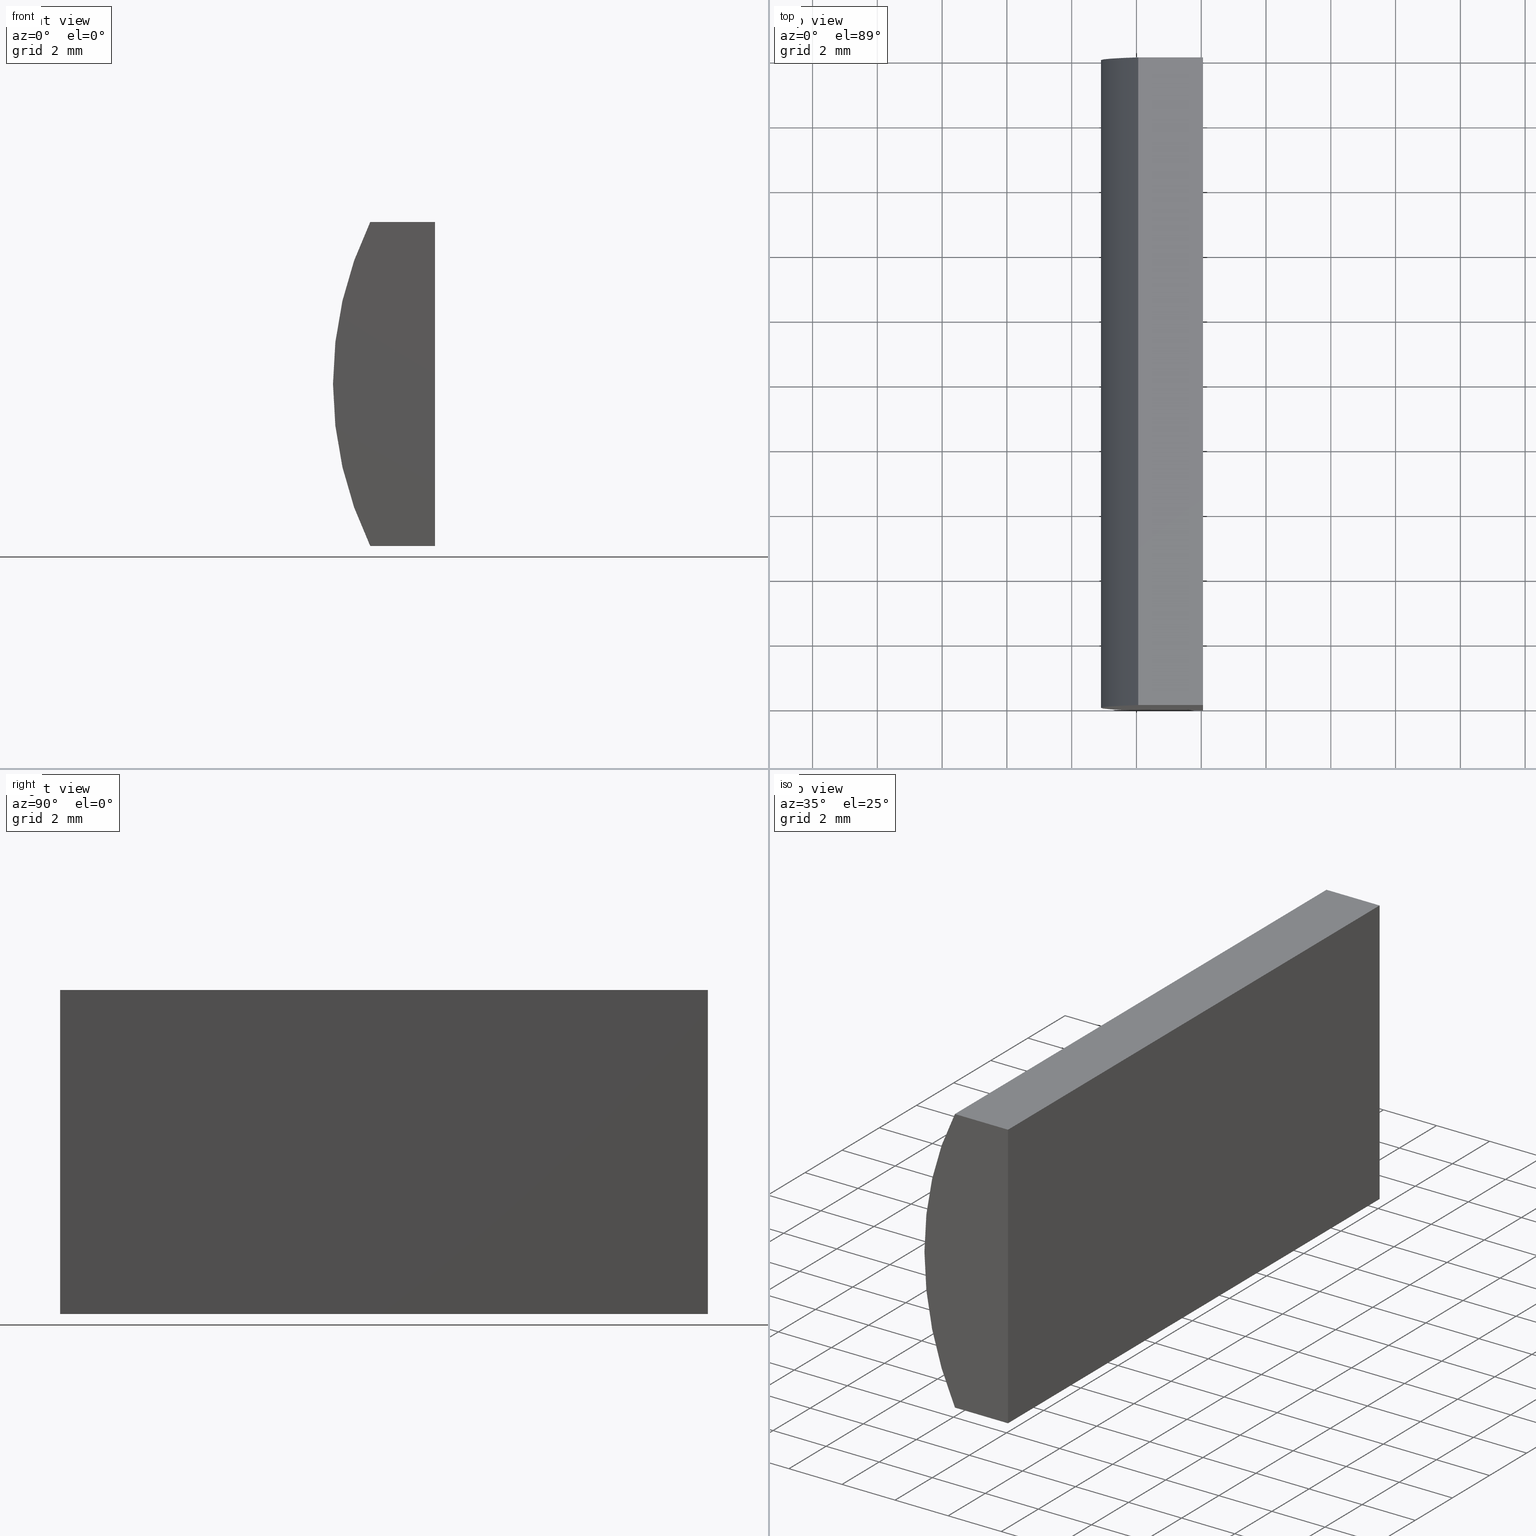
[diagram: canonical four-view strip — front | top / right | iso, engineering-drawing reading convention]
A machine part, canonical four-view strip (front | top / right | iso — engineering-drawing reading convention). The complete STEP part file that produces these views, byte-faithful:
ISO-10303-21;
HEADER;
FILE_DESCRIPTION (( 'STEP AP214' ),
    '1' );
FILE_NAME ('155281.STEP',
    '2019-06-26T01:50:11',
    ( 'user' ),
    ( '΢���й�' ),
    'SwSTEP 2.0',
    'SolidWorks 2016',
    '' );
FILE_SCHEMA (( 'AUTOMOTIVE_DESIGN' ));
ENDSEC;

DATA;
#1 = DIRECTION ( 'NONE',  ( 0.0000000000000000000, 0.0000000000000000000, -1.000000000000000000 ) ) ;
#2 = LINE ( 'NONE', #203, #44 ) ;
#3 =( GEOMETRIC_REPRESENTATION_CONTEXT ( 3 ) GLOBAL_UNCERTAINTY_ASSIGNED_CONTEXT ( ( #74 ) ) GLOBAL_UNIT_ASSIGNED_CONTEXT ( ( #107, #101, #195 ) ) REPRESENTATION_CONTEXT ( 'NONE', 'WORKASPACE' ) );
#4 = ADVANCED_FACE ( 'NONE', ( #135 ), #16, .F. ) ;
#5 = CIRCLE ( 'NONE', #42, 11.45000000000000100 ) ;
#6 = STYLED_ITEM ( 'NONE', ( #120 ), #124 ) ;
#7 = UNCERTAINTY_MEASURE_WITH_UNIT (LENGTH_MEASURE( 1.000000000000000100E-005 ), #45, 'distance_accuracy_value', 'NONE');
#8 = DIRECTION ( 'NONE',  ( 1.000000000000000000, 0.0000000000000000000, -0.0000000000000000000 ) ) ;
#9 = LINE ( 'NONE', #197, #173 ) ;
#10 = CARTESIAN_POINT ( 'NONE',  ( -5.945402443392432600, 20.00000000000000000, -5.000000000000000000 ) ) ;
#11 =( GEOMETRIC_REPRESENTATION_CONTEXT ( 3 ) GLOBAL_UNCERTAINTY_ASSIGNED_CONTEXT ( ( #131 ) ) GLOBAL_UNIT_ASSIGNED_CONTEXT ( ( #59, #93, #62 ) ) REPRESENTATION_CONTEXT ( 'NONE', 'WORKASPACE' ) );
#12 = EDGE_LOOP ( 'NONE', ( #21, #187, #122, #128 ) ) ;
#13 = VECTOR ( 'NONE', #142, 1000.000000000000000 ) ;
#14 = CARTESIAN_POINT ( 'NONE',  ( -5.945402443392432600, 0.0000000000000000000, -5.000000000000000000 ) ) ;
#15 = ORIENTED_EDGE ( 'NONE', *, *, #68, .T. ) ;
#16 = PLANE ( 'NONE',  #196 ) ;
#17 = ADVANCED_FACE ( 'NONE', ( #19 ), #127, .T. ) ;
#18 = CARTESIAN_POINT ( 'NONE',  ( -5.945402443392432600, 0.0000000000000000000, 5.000000000000000000 ) ) ;
#19 = FACE_OUTER_BOUND ( 'NONE', #12, .T. ) ;
#20 = CARTESIAN_POINT ( 'NONE',  ( -3.944795665148738400, 20.00000000000000000, -5.000000000000000000 ) ) ;
#21 = ORIENTED_EDGE ( 'NONE', *, *, #132, .T. ) ;
#22 = PRODUCT_DEFINITION_SHAPE ( 'NONE', 'NONE',  #147 ) ;
#23 = SURFACE_SIDE_STYLE ('',( #52 ) ) ;
#24 = ADVANCED_FACE ( 'NONE', ( #48 ), #160, .F. ) ;
#25 = VERTEX_POINT ( 'NONE', #30 ) ;
#26 = DIRECTION ( 'NONE',  ( -1.000000000000000000, 0.0000000000000000000, 3.469446951953614200E-016 ) ) ;
#27 = DIRECTION ( 'NONE',  ( -1.000000000000000000, 0.0000000000000000000, -0.0000000000000000000 ) ) ;
#28 = PLANE ( 'NONE',  #97 ) ;
#29 = EDGE_CURVE ( 'NONE', #145, #136, #86, .T. ) ;
#30 = CARTESIAN_POINT ( 'NONE',  ( -3.944795665148738400, 0.0000000000000000000, -5.000000000000000000 ) ) ;
#31 = PRESENTATION_LAYER_ASSIGNMENT (  '', '', ( #102 ) ) ;
#32 = DIRECTION ( 'NONE',  ( 0.0000000000000000000, -0.0000000000000000000, 1.000000000000000000 ) ) ;
#33 = ORIENTED_EDGE ( 'NONE', *, *, #66, .T. ) ;
#34 = EDGE_CURVE ( 'NONE', #117, #145, #9, .T. ) ;
#35 = ORIENTED_EDGE ( 'NONE', *, *, #34, .T. ) ;
#36 = ORIENTED_EDGE ( 'NONE', *, *, #132, .F. ) ;
#37 = EDGE_LOOP ( 'NONE', ( #81, #165, #91, #99 ) ) ;
#38 = PRESENTATION_LAYER_ASSIGNMENT (  '', '', ( #6 ) ) ;
#39 = ADVANCED_FACE ( 'NONE', ( #178 ), #28, .T. ) ;
#40 = DIRECTION ( 'NONE',  ( 0.0000000000000000000, 1.000000000000000000, 0.0000000000000000000 ) ) ;
#41 = SURFACE_STYLE_FILL_AREA ( #125 ) ;
#42 = AXIS2_PLACEMENT_3D ( 'NONE', #73, #40, #116 ) ;
#43 = CARTESIAN_POINT ( 'NONE',  ( -5.945402443392432600, 20.00000000000000000, 5.000000000000000000 ) ) ;
#44 = VECTOR ( 'NONE', #167, 1000.000000000000000 ) ;
#45 =( LENGTH_UNIT ( ) NAMED_UNIT ( * ) SI_UNIT ( .MILLI., .METRE. ) );
#46 = CARTESIAN_POINT ( 'NONE',  ( 4.355204334851265500, 20.00000000000000000, 4.286263797015675000E-017 ) ) ;
#47 = CARTESIAN_POINT ( 'NONE',  ( -5.945402443392432600, 0.0000000000000000000, 5.000000000000000000 ) ) ;
#48 = FACE_OUTER_BOUND ( 'NONE', #51, .T. ) ;
#49 = EDGE_LOOP ( 'NONE', ( #103, #35, #201, #33 ) ) ;
#50 = EDGE_CURVE ( 'NONE', #136, #25, #83, .T. ) ;
#51 = EDGE_LOOP ( 'NONE', ( #129, #154, #55, #64 ) ) ;
#52 = SURFACE_STYLE_FILL_AREA ( #137 ) ;
#53 = DIRECTION ( 'NONE',  ( 0.0000000000000000000, 1.000000000000000000, 0.0000000000000000000 ) ) ;
#54 = AXIS2_PLACEMENT_3D ( 'NONE', #10, #150, #8 ) ;
#55 = ORIENTED_EDGE ( 'NONE', *, *, #34, .F. ) ;
#56 = APPLICATION_PROTOCOL_DEFINITION ( 'draft international standard', 'automotive_design', 1998, #157 ) ;
#57 = DIRECTION ( 'NONE',  ( 0.0000000000000000000, 0.0000000000000000000, -1.000000000000000000 ) ) ;
#58 = ORIENTED_EDGE ( 'NONE', *, *, #50, .F. ) ;
#59 =( LENGTH_UNIT ( ) NAMED_UNIT ( * ) SI_UNIT ( .MILLI., .METRE. ) );
#60 = EDGE_CURVE ( 'NONE', #145, #70, #170, .T. ) ;
#61 = COLOUR_RGB ( '',1.000000000000000000, 1.000000000000000000, 1.000000000000000000 ) ;
#62 =( NAMED_UNIT ( * ) SI_UNIT ( $, .STERADIAN. ) SOLID_ANGLE_UNIT ( ) );
#63 = DIRECTION ( 'NONE',  ( 1.000000000000000000, 0.0000000000000000000, 0.0000000000000000000 ) ) ;
#64 = ORIENTED_EDGE ( 'NONE', *, *, #75, .T. ) ;
#65 = LINE ( 'NONE', #14, #114 ) ;
#66 = EDGE_CURVE ( 'NONE', #70, #146, #105, .T. ) ;
#67 = DIRECTION ( 'NONE',  ( 0.0000000000000000000, 0.0000000000000000000, 1.000000000000000000 ) ) ;
#68 = EDGE_CURVE ( 'NONE', #70, #25, #172, .T. ) ;
#69 =( NAMED_UNIT ( * ) PLANE_ANGLE_UNIT ( ) SI_UNIT ( $, .RADIAN. ) );
#70 = VERTEX_POINT ( 'NONE', #20 ) ;
#71 = MECHANICAL_DESIGN_GEOMETRIC_PRESENTATION_REPRESENTATION (  '', ( #102 ), #3 ) ;
#72 = CARTESIAN_POINT ( 'NONE',  ( -5.945402443392432600, 20.00000000000000000, -5.000000000000000000 ) ) ;
#73 = CARTESIAN_POINT ( 'NONE',  ( 4.355204334851265500, 20.00000000000000000, 4.286263797015675000E-017 ) ) ;
#74 = UNCERTAINTY_MEASURE_WITH_UNIT (LENGTH_MEASURE( 1.000000000000000100E-005 ), #107, 'distance_accuracy_value', 'NONE');
#75 = EDGE_CURVE ( 'NONE', #117, #141, #169, .T. ) ;
#76 = CARTESIAN_POINT ( 'NONE',  ( -5.945402443392432600, 20.00000000000000000, -5.000000000000000000 ) ) ;
#77 = ORIENTED_EDGE ( 'NONE', *, *, #188, .T. ) ;
#78 = SURFACE_STYLE_USAGE ( .BOTH. , #94 ) ;
#79 = VECTOR ( 'NONE', #104, 1000.000000000000000 ) ;
#80 = VERTEX_POINT ( 'NONE', #148 ) ;
#81 = ORIENTED_EDGE ( 'NONE', *, *, #50, .T. ) ;
#82 = CARTESIAN_POINT ( 'NONE',  ( -3.944795665148738400, 0.0000000000000000000, -5.000000000000000000 ) ) ;
#83 = LINE ( 'NONE', #82, #182 ) ;
#84 = DIRECTION ( 'NONE',  ( 0.0000000000000000000, -0.0000000000000000000, 1.000000000000000000 ) ) ;
#85 = VECTOR ( 'NONE', #130, 1000.000000000000000 ) ;
#86 = LINE ( 'NONE', #151, #13 ) ;
#87 = EDGE_LOOP ( 'NONE', ( #36, #152, #58, #158 ) ) ;
#88 = CARTESIAN_POINT ( 'NONE',  ( 4.355204334851265500, 0.0000000000000000000, 4.286263797015675000E-017 ) ) ;
#89 = DIRECTION ( 'NONE',  ( 3.469446951953614200E-016, 0.0000000000000000000, 1.000000000000000000 ) ) ;
#90 = AXIS2_PLACEMENT_3D ( 'NONE', #121, #126, #57 ) ;
#91 = ORIENTED_EDGE ( 'NONE', *, *, #60, .F. ) ;
#92 = COLOUR_RGB ( '',1.000000000000000000, 1.000000000000000000, 1.000000000000000000 ) ;
#93 =( NAMED_UNIT ( * ) PLANE_ANGLE_UNIT ( ) SI_UNIT ( $, .RADIAN. ) );
#94 = SURFACE_SIDE_STYLE ('',( #41 ) ) ;
#95 = CARTESIAN_POINT ( 'NONE',  ( 0.0000000000000000000, 0.0000000000000000000, 0.0000000000000000000 ) ) ;
#96 = CARTESIAN_POINT ( 'NONE',  ( -3.944795665148738400, 20.00000000000000000, -5.000000000000000000 ) ) ;
#97 = AXIS2_PLACEMENT_3D ( 'NONE', #46, #53, #32 ) ;
#98 = ADVANCED_FACE ( 'NONE', ( #138 ), #164, .F. ) ;
#99 = ORIENTED_EDGE ( 'NONE', *, *, #29, .T. ) ;
#100 = FILL_AREA_STYLE_COLOUR ( '', #92 ) ;
#101 =( NAMED_UNIT ( * ) PLANE_ANGLE_UNIT ( ) SI_UNIT ( $, .RADIAN. ) );
#102 = STYLED_ITEM ( 'NONE', ( #175 ), #184 ) ;
#103 = ORIENTED_EDGE ( 'NONE', *, *, #166, .T. ) ;
#104 = DIRECTION ( 'NONE',  ( -0.0000000000000000000, -1.000000000000000000, -0.0000000000000000000 ) ) ;
#105 = LINE ( 'NONE', #76, #204 ) ;
#106 = CARTESIAN_POINT ( 'NONE',  ( -5.945402443392432600, 20.00000000000000000, 5.000000000000000000 ) ) ;
#107 =( LENGTH_UNIT ( ) NAMED_UNIT ( * ) SI_UNIT ( .MILLI., .METRE. ) );
#108 = EDGE_CURVE ( 'NONE', #146, #80, #2, .T. ) ;
#109 = DIRECTION ( 'NONE',  ( -1.000000000000000000, -0.0000000000000000000, -0.0000000000000000000 ) ) ;
#110 = CARTESIAN_POINT ( 'NONE',  ( -3.944795665148738400, 20.00000000000000000, -5.000000000000000000 ) ) ;
#111 = PRODUCT_DEFINITION_FORMATION_WITH_SPECIFIED_SOURCE ( '�κ�', '', #186, .NOT_KNOWN. ) ;
#112 = CARTESIAN_POINT ( 'NONE',  ( -3.944795665148738400, 20.00000000000000000, -5.000000000000000000 ) ) ;
#113 = CARTESIAN_POINT ( 'NONE',  ( -3.944795665148734800, 0.0000000000000000000, 5.000000000000000000 ) ) ;
#114 = VECTOR ( 'NONE', #109, 1000.000000000000000 ) ;
#115 = SURFACE_STYLE_USAGE ( .BOTH. , #23 ) ;
#116 = DIRECTION ( 'NONE',  ( 0.0000000000000000000, 0.0000000000000000000, 1.000000000000000000 ) ) ;
#117 = VERTEX_POINT ( 'NONE', #43 ) ;
#118 = CARTESIAN_POINT ( 'NONE',  ( 4.355204334851265500, 0.0000000000000000000, 4.286263797015675000E-017 ) ) ;
#119 = VECTOR ( 'NONE', #163, 1000.000000000000000 ) ;
#120 = PRESENTATION_STYLE_ASSIGNMENT (( #78 ) ) ;
#121 = CARTESIAN_POINT ( 'NONE',  ( 4.355204334851265500, 20.00000000000000000, 4.286263797015675000E-017 ) ) ;
#122 = ORIENTED_EDGE ( 'NONE', *, *, #166, .F. ) ;
#123 = VECTOR ( 'NONE', #202, 1000.000000000000000 ) ;
#124 = MANIFOLD_SOLID_BREP ( '͹̨-����1', #174 ) ;
#125 = FILL_AREA_STYLE ('',( #200 ) ) ;
#126 = DIRECTION ( 'NONE',  ( -0.0000000000000000000, -1.000000000000000000, -0.0000000000000000000 ) ) ;
#127 = CYLINDRICAL_SURFACE ( 'NONE', #90, 11.45000000000000100 ) ;
#128 = ORIENTED_EDGE ( 'NONE', *, *, #108, .T. ) ;
#129 = ORIENTED_EDGE ( 'NONE', *, *, #143, .T. ) ;
#130 = DIRECTION ( 'NONE',  ( -0.0000000000000000000, -1.000000000000000000, -0.0000000000000000000 ) ) ;
#131 = UNCERTAINTY_MEASURE_WITH_UNIT (LENGTH_MEASURE( 1.000000000000000100E-005 ), #59, 'distance_accuracy_value', 'NONE');
#132 = EDGE_CURVE ( 'NONE', #80, #141, #161, .T. ) ;
#133 = ADVANCED_FACE ( 'NONE', ( #180 ), #134, .F. ) ;
#134 = PLANE ( 'NONE',  #149 ) ;
#135 = FACE_OUTER_BOUND ( 'NONE', #37, .T. ) ;
#136 = VERTEX_POINT ( 'NONE', #113 ) ;
#137 = FILL_AREA_STYLE ('',( #100 ) ) ;
#138 = FACE_OUTER_BOUND ( 'NONE', #181, .T. ) ;
#139 = AXIS2_PLACEMENT_3D ( 'NONE', #88, #168, #67 ) ;
#140 = PRODUCT_DEFINITION_CONTEXT ( 'detailed design', #183, 'design' ) ;
#141 = VERTEX_POINT ( 'NONE', #47 ) ;
#142 = DIRECTION ( 'NONE',  ( -0.0000000000000000000, -1.000000000000000000, -0.0000000000000000000 ) ) ;
#143 = EDGE_CURVE ( 'NONE', #141, #136, #156, .T. ) ;
#144 = APPLICATION_PROTOCOL_DEFINITION ( 'draft international standard', 'automotive_design', 1998, #183 ) ;
#145 = VERTEX_POINT ( 'NONE', #199 ) ;
#146 = VERTEX_POINT ( 'NONE', #72 ) ;
#147 = PRODUCT_DEFINITION ( 'δ֪', '', #111, #140 ) ;
#148 = CARTESIAN_POINT ( 'NONE',  ( -5.945402443392432600, 0.0000000000000000000, -5.000000000000000000 ) ) ;
#149 = AXIS2_PLACEMENT_3D ( 'NONE', #118, #191, #84 ) ;
#150 = DIRECTION ( 'NONE',  ( 0.0000000000000000000, 0.0000000000000000000, 1.000000000000000000 ) ) ;
#151 = CARTESIAN_POINT ( 'NONE',  ( -3.944795665148734800, 20.00000000000000000, 5.000000000000000000 ) ) ;
#152 = ORIENTED_EDGE ( 'NONE', *, *, #188, .F. ) ;
#153 = MECHANICAL_DESIGN_GEOMETRIC_PRESENTATION_REPRESENTATION (  '', ( #6 ), #192 ) ;
#154 = ORIENTED_EDGE ( 'NONE', *, *, #29, .F. ) ;
#155 = SHAPE_DEFINITION_REPRESENTATION ( #22, #184 ) ;
#156 = LINE ( 'NONE', #18, #123 ) ;
#157 = APPLICATION_CONTEXT ( 'automotive_design' ) ;
#158 = ORIENTED_EDGE ( 'NONE', *, *, #143, .F. ) ;
#159 = PRODUCT_CONTEXT ( 'NONE', #157, 'mechanical' ) ;
#160 = PLANE ( 'NONE',  #194 ) ;
#161 = CIRCLE ( 'NONE', #139, 11.45000000000000100 ) ;
#162 = DIRECTION ( 'NONE',  ( -3.469446951953614200E-016, -0.0000000000000000000, -1.000000000000000000 ) ) ;
#163 = DIRECTION ( 'NONE',  ( -3.469446951953614200E-016, -0.0000000000000000000, -1.000000000000000000 ) ) ;
#164 = PLANE ( 'NONE',  #54 ) ;
#165 = ORIENTED_EDGE ( 'NONE', *, *, #68, .F. ) ;
#166 = EDGE_CURVE ( 'NONE', #146, #117, #5, .T. ) ;
#167 = DIRECTION ( 'NONE',  ( -0.0000000000000000000, -1.000000000000000000, -0.0000000000000000000 ) ) ;
#168 = DIRECTION ( 'NONE',  ( 0.0000000000000000000, 1.000000000000000000, 0.0000000000000000000 ) ) ;
#169 = LINE ( 'NONE', #193, #79 ) ;
#170 = LINE ( 'NONE', #110, #119 ) ;
#171 = DIRECTION ( 'NONE',  ( 0.0000000000000000000, 0.0000000000000000000, 1.000000000000000000 ) ) ;
#172 = LINE ( 'NONE', #112, #85 ) ;
#173 = VECTOR ( 'NONE', #176, 1000.000000000000000 ) ;
#174 = CLOSED_SHELL ( 'NONE', ( #17, #24, #4, #98, #39, #133 ) ) ;
#175 = PRESENTATION_STYLE_ASSIGNMENT (( #115 ) ) ;
#176 = DIRECTION ( 'NONE',  ( 1.000000000000000000, 0.0000000000000000000, 0.0000000000000000000 ) ) ;
#177 = ORIENTED_EDGE ( 'NONE', *, *, #108, .F. ) ;
#178 = FACE_OUTER_BOUND ( 'NONE', #49, .T. ) ;
#179 = AXIS2_PLACEMENT_3D ( 'NONE', #95, #171, #63 ) ;
#180 = FACE_OUTER_BOUND ( 'NONE', #87, .T. ) ;
#181 = EDGE_LOOP ( 'NONE', ( #77, #177, #189, #15 ) ) ;
#182 = VECTOR ( 'NONE', #162, 1000.000000000000000 ) ;
#183 = APPLICATION_CONTEXT ( 'automotive_design' ) ;
#184 = ADVANCED_BREP_SHAPE_REPRESENTATION ( '155281', ( #124, #179 ), #11 ) ;
#185 =( NAMED_UNIT ( * ) SI_UNIT ( $, .STERADIAN. ) SOLID_ANGLE_UNIT ( ) );
#186 = PRODUCT ( '155281', '155281', '', ( #159 ) ) ;
#187 = ORIENTED_EDGE ( 'NONE', *, *, #75, .F. ) ;
#188 = EDGE_CURVE ( 'NONE', #25, #80, #65, .T. ) ;
#189 = ORIENTED_EDGE ( 'NONE', *, *, #66, .F. ) ;
#190 = DIRECTION ( 'NONE',  ( -1.000000000000000000, -0.0000000000000000000, -0.0000000000000000000 ) ) ;
#191 = DIRECTION ( 'NONE',  ( 0.0000000000000000000, 1.000000000000000000, 0.0000000000000000000 ) ) ;
#192 =( GEOMETRIC_REPRESENTATION_CONTEXT ( 3 ) GLOBAL_UNCERTAINTY_ASSIGNED_CONTEXT ( ( #7 ) ) GLOBAL_UNIT_ASSIGNED_CONTEXT ( ( #45, #69, #185 ) ) REPRESENTATION_CONTEXT ( 'NONE', 'WORKASPACE' ) );
#193 = CARTESIAN_POINT ( 'NONE',  ( -5.945402443392432600, 20.00000000000000000, 5.000000000000000000 ) ) ;
#194 = AXIS2_PLACEMENT_3D ( 'NONE', #106, #1, #27 ) ;
#195 =( NAMED_UNIT ( * ) SI_UNIT ( $, .STERADIAN. ) SOLID_ANGLE_UNIT ( ) );
#196 = AXIS2_PLACEMENT_3D ( 'NONE', #96, #26, #89 ) ;
#197 = CARTESIAN_POINT ( 'NONE',  ( -5.945402443392432600, 20.00000000000000000, 5.000000000000000000 ) ) ;
#198 = PRODUCT_RELATED_PRODUCT_CATEGORY ( 'part', '', ( #186 ) ) ;
#199 = CARTESIAN_POINT ( 'NONE',  ( -3.944795665148734800, 20.00000000000000000, 5.000000000000000000 ) ) ;
#200 = FILL_AREA_STYLE_COLOUR ( '', #61 ) ;
#201 = ORIENTED_EDGE ( 'NONE', *, *, #60, .T. ) ;
#202 = DIRECTION ( 'NONE',  ( 1.000000000000000000, 0.0000000000000000000, 0.0000000000000000000 ) ) ;
#203 = CARTESIAN_POINT ( 'NONE',  ( -5.945402443392432600, 20.00000000000000000, -5.000000000000000000 ) ) ;
#204 = VECTOR ( 'NONE', #190, 1000.000000000000000 ) ;
ENDSEC;
END-ISO-10303-21;
